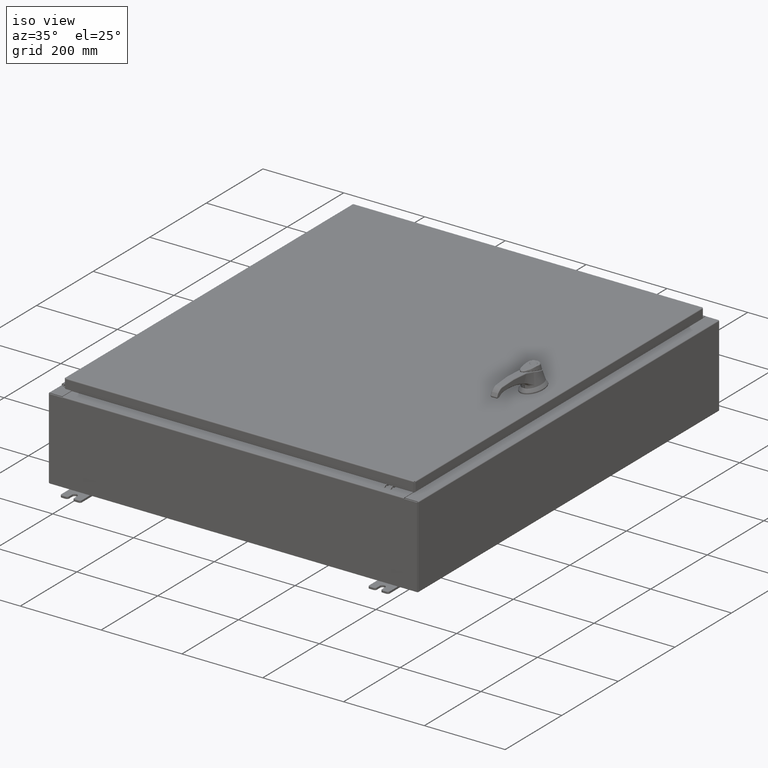
[diagram: clean part render]
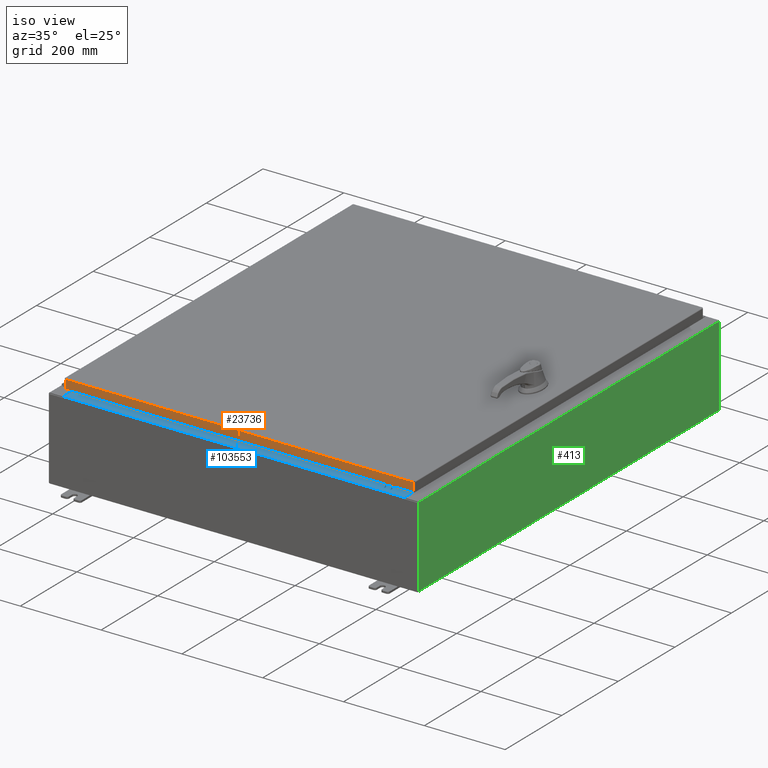
[diagram: same view with three faces highlighted in distinct colors, each labeled with its STEP entity id]
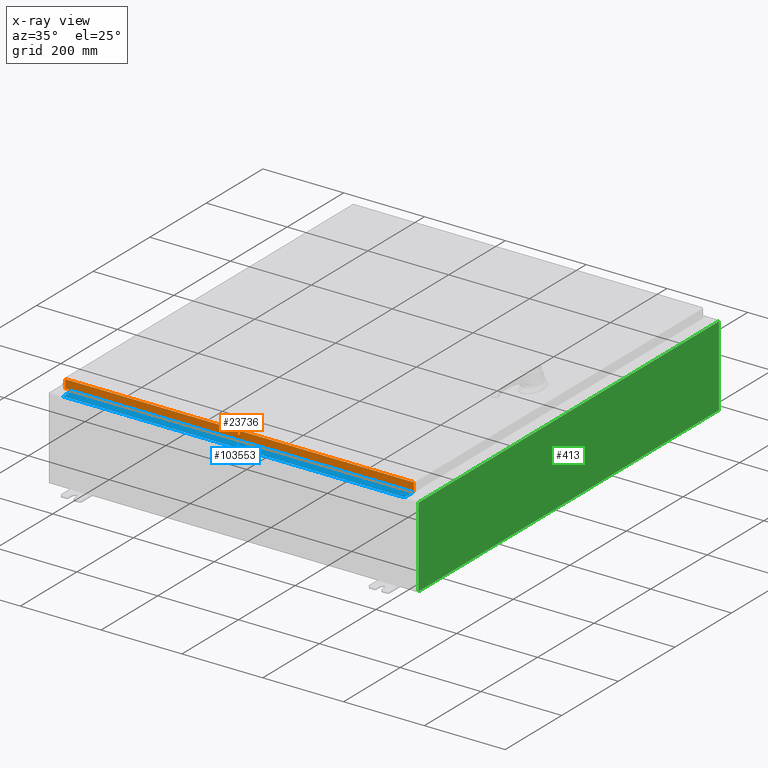
[diagram: x-ray of the same camera — body ghosted, the three highlighted faces saturated]
A machine part, iso view with three faces highlighted in distinct colors.
The next image is the same camera in x-ray (body ghosted, the three faces saturated) — at least one of them is partly hidden behind the body in this view.
Their STEP definitions:

[orange] entity #23736 — the highlighted planar face has unit normal (-0, 1, -0).
#3263 = ORIENTED_EDGE ( 'NONE', *, *, #40494, .F. ) ;
#3434 = EDGE_LOOP ( 'NONE', ( #3263, #30950, #43251, #114079 ) ) ;
#3495 = EDGE_CURVE ( 'NONE', #19994, #8673, #93280, .T. ) ;
#5152 = VECTOR ( 'NONE', #117769, 39.37007874015748100 ) ;
#6419 = EDGE_CURVE ( 'NONE', #125095, #19994, #69797, .T. ) ;
#8673 = VERTEX_POINT ( 'NONE', #43260 ) ;
#9831 = FACE_OUTER_BOUND ( 'NONE', #3434, .T. ) ;
#19994 = VERTEX_POINT ( 'NONE', #24691 ) ;
#23736 = ADVANCED_FACE ( 'NONE', ( #9831 ), #92582, .F. ) ;
#24691 = CARTESIAN_POINT ( 'NONE',  ( 16.98915786437627100, -20.09400000000000800, -0.9376999999999997600 ) ) ;
#27061 = VECTOR ( 'NONE', #78703, 39.37007874015748100 ) ;
#30950 = ORIENTED_EDGE ( 'NONE', *, *, #58894, .T. ) ;
#31647 = CARTESIAN_POINT ( 'NONE',  ( 16.98915786437627100, -20.09400000000000100, -0.07469999999999962800 ) ) ;
#32455 = DIRECTION ( 'NONE',  ( -1.000000000000000000, 8.758115402030108600E-047, 1.279703943630056800E-016 ) ) ;
#40494 = EDGE_CURVE ( 'NONE', #79415, #125095, #71719, .T. ) ;
#42867 = DIRECTION ( 'NONE',  ( -0.0000000000000000000, -5.064839849203732200E-015, -1.000000000000000000 ) ) ;
#43192 = DIRECTION ( 'NONE',  ( -6.481495528880676900E-031, 1.000000000000000000, -5.064839849203732200E-015 ) ) ;
#43251 = ORIENTED_EDGE ( 'NONE', *, *, #3495, .F. ) ;
#43260 = CARTESIAN_POINT ( 'NONE',  ( -16.98915786437626700, -20.09400000000000800, -0.9376999999999954300 ) ) ;
#43462 = VECTOR ( 'NONE', #42867, 39.37007874015748100 ) ;
#48431 = CARTESIAN_POINT ( 'NONE',  ( 17.07799999999999900, -20.09400000000000100, -0.08769999999999550400 ) ) ;
#52309 = CARTESIAN_POINT ( 'NONE',  ( -16.98915786437626700, -20.09400000000000100, -0.08769999999999550400 ) ) ;
#53332 = LINE ( 'NONE', #118176, #27061 ) ;
#58894 = EDGE_CURVE ( 'NONE', #79415, #8673, #53332, .T. ) ;
#66866 = VECTOR ( 'NONE', #32455, 39.37007874015748100 ) ;
#69797 = LINE ( 'NONE', #31647, #43462 ) ;
#71719 = LINE ( 'NONE', #48431, #5152 ) ;
#78703 = DIRECTION ( 'NONE',  ( 0.0000000000000000000, -5.064839849203732200E-015, -1.000000000000000000 ) ) ;
#79415 = VERTEX_POINT ( 'NONE', #52309 ) ;
#81792 = CARTESIAN_POINT ( 'NONE',  ( 17.07799999999999900, -20.09400000000000800, -0.9376999999999997600 ) ) ;
#92365 = CARTESIAN_POINT ( 'NONE',  ( 16.98915786437626700, -20.09400000000000100, -0.08769999999999550400 ) ) ;
#92582 = PLANE ( 'NONE',  #127465 ) ;
#93280 = LINE ( 'NONE', #81792, #66866 ) ;
#102508 = CARTESIAN_POINT ( 'NONE',  ( 1.302391711573283500E-029, -20.09400000000000100, 1.020337055859114000E-013 ) ) ;
#112471 = DIRECTION ( 'NONE',  ( 0.0000000000000000000, 5.064839849203732200E-015, 1.000000000000000000 ) ) ;
#114079 = ORIENTED_EDGE ( 'NONE', *, *, #6419, .F. ) ;
#117769 = DIRECTION ( 'NONE',  ( 1.000000000000000000, 6.481495528880677800E-031, -3.349804276043092000E-045 ) ) ;
#118176 = CARTESIAN_POINT ( 'NONE',  ( -16.98915786437626700, -20.09400000000000100, 1.020337055859114000E-013 ) ) ;
#125095 = VERTEX_POINT ( 'NONE', #92365 ) ;
#127465 = AXIS2_PLACEMENT_3D ( 'NONE', #102508, #43192, #112471 ) ;

[blue] entity #103553 — the highlighted planar face has unit normal (-0, -0, 1).
#648 = CARTESIAN_POINT ( 'NONE',  ( 16.63720000000000700, -1.287299999999999900, 4.000000000000004400 ) ) ;
#3420 = ORIENTED_EDGE ( 'NONE', *, *, #18044, .F. ) ;
#4091 = LINE ( 'NONE', #37210, #53612 ) ;
#5789 = VECTOR ( 'NONE', #109260, 39.37007874015748100 ) ;
#6650 = PLANE ( 'NONE',  #62836 ) ;
#7823 = DIRECTION ( 'NONE',  ( -1.000000000000000000, 3.284023746380717400E-017, -1.171208052571274300E-031 ) ) ;
#8032 = VERTEX_POINT ( 'NONE', #16927 ) ;
#8123 = VECTOR ( 'NONE', #30508, 39.37007874015748100 ) ;
#16579 = DIRECTION ( 'NONE',  ( 0.0000000000000000000, -1.000000000000000000, 3.566381192773190000E-015 ) ) ;
#16927 = CARTESIAN_POINT ( 'NONE',  ( 16.63720000000000400, -1.287299999999999900, 4.000000000000004400 ) ) ;
#18044 = EDGE_CURVE ( 'NONE', #22214, #8032, #32122, .T. ) ;
#22214 = VERTEX_POINT ( 'NONE', #58068 ) ;
#30508 = DIRECTION ( 'NONE',  ( -1.000000000000000000, 0.0000000000000000000, 0.0000000000000000000 ) ) ;
#32122 = LINE ( 'NONE', #99346, #5789 ) ;
#32381 = ORIENTED_EDGE ( 'NONE', *, *, #66994, .T. ) ;
#37210 = CARTESIAN_POINT ( 'NONE',  ( -2.880088825576348200E-018, -0.08769999999999972300, 4.000000000000000900 ) ) ;
#38741 = CARTESIAN_POINT ( 'NONE',  ( -16.63719999999999600, -1.287299999999999200, 4.000000000000004400 ) ) ;
#41379 = VERTEX_POINT ( 'NONE', #38741 ) ;
#46899 = CARTESIAN_POINT ( 'NONE',  ( -16.63719999999999600, -0.07469999999999973900, 4.000000000000000900 ) ) ;
#47881 = EDGE_CURVE ( 'NONE', #41379, #65708, #51724, .T. ) ;
#51575 = ORIENTED_EDGE ( 'NONE', *, *, #47881, .F. ) ;
#51724 = LINE ( 'NONE', #46899, #127687 ) ;
#53612 = VECTOR ( 'NONE', #7823, 39.37007874015748100 ) ;
#58068 = CARTESIAN_POINT ( 'NONE',  ( 16.63720000000000700, -0.08769999999999937600, 4.000000000000000900 ) ) ;
#62836 = AXIS2_PLACEMENT_3D ( 'NONE', #115346, #75895, #16579 ) ;
#65384 = EDGE_LOOP ( 'NONE', ( #51575, #68813, #3420, #32381 ) ) ;
#65708 = VERTEX_POINT ( 'NONE', #111496 ) ;
#66994 = EDGE_CURVE ( 'NONE', #22214, #65708, #4091, .T. ) ;
#68813 = ORIENTED_EDGE ( 'NONE', *, *, #78249, .F. ) ;
#75895 = DIRECTION ( 'NONE',  ( 0.0000000000000000000, 3.566381192773190000E-015, 1.000000000000000000 ) ) ;
#78249 = EDGE_CURVE ( 'NONE', #8032, #41379, #113458, .T. ) ;
#95882 = DIRECTION ( 'NONE',  ( -0.0000000000000000000, 1.000000000000000000, -3.566381192773190000E-015 ) ) ;
#99346 = CARTESIAN_POINT ( 'NONE',  ( 16.63720000000000400, -1.300299999999999800, 4.000000000000004400 ) ) ;
#103553 = ADVANCED_FACE ( 'NONE', ( #109976 ), #6650, .T. ) ;
#109260 = DIRECTION ( 'NONE',  ( -0.0000000000000000000, -1.000000000000000000, 3.566381192773190000E-015 ) ) ;
#109976 = FACE_OUTER_BOUND ( 'NONE', #65384, .T. ) ;
#111496 = CARTESIAN_POINT ( 'NONE',  ( -16.63719999999999600, -0.08769999999999972300, 4.000000000000000900 ) ) ;
#113458 = LINE ( 'NONE', #648, #8123 ) ;
#115346 = CARTESIAN_POINT ( 'NONE',  ( 0.0000000000000000000, 1.425992975200418500E-014, 4.000000000000000900 ) ) ;
#127687 = VECTOR ( 'NONE', #95882, 39.37007874015748100 ) ;

[green] entity #413 — the highlighted planar face has unit normal (-1, 0, 0).
#413 = ADVANCED_FACE ( 'NONE', ( #27924 ), #69084, .F. ) ;
#5013 = DIRECTION ( 'NONE',  ( -0.0000000000000000000, -1.000000000000000000, -0.0000000000000000000 ) ) ;
#7590 = CARTESIAN_POINT ( 'NONE',  ( 18.00000000000002800, 20.92529999999997900, 7.837599999999999200 ) ) ;
#8276 = VERTEX_POINT ( 'NONE', #69280 ) ;
#9633 = EDGE_CURVE ( 'NONE', #111338, #32186, #118984, .T. ) ;
#23862 = ORIENTED_EDGE ( 'NONE', *, *, #9633, .T. ) ;
#27924 = FACE_OUTER_BOUND ( 'NONE', #120368, .T. ) ;
#28124 = CARTESIAN_POINT ( 'NONE',  ( 18.00000000000000400, 20.92529999999998900, -6.478858477053724100E-014 ) ) ;
#32186 = VERTEX_POINT ( 'NONE', #43701 ) ;
#43701 = CARTESIAN_POINT ( 'NONE',  ( 18.00000000000003200, -20.92529999999999600, 7.837599999999999200 ) ) ;
#47184 = AXIS2_PLACEMENT_3D ( 'NONE', #75061, #125487, #126742 ) ;
#47404 = DIRECTION ( 'NONE',  ( -0.0000000000000000000, -1.000000000000000000, -0.0000000000000000000 ) ) ;
#58836 = CARTESIAN_POINT ( 'NONE',  ( 18.00000000000002800, 20.92529999999997500, 7.837599999999999200 ) ) ;
#66142 = VECTOR ( 'NONE', #47404, 39.37007874015748100 ) ;
#69084 = PLANE ( 'NONE',  #47184 ) ;
#69159 = CARTESIAN_POINT ( 'NONE',  ( 18.00000000000000400, -20.92529999999999600, -6.478858477053724100E-014 ) ) ;
#69280 = CARTESIAN_POINT ( 'NONE',  ( 18.00000000000000400, -20.92529999999999600, 0.01299999999999983600 ) ) ;
#74263 = CARTESIAN_POINT ( 'NONE',  ( 18.00000000000000400, -20.92529999999999600, 0.01299999999999984700 ) ) ;
#75061 = CARTESIAN_POINT ( 'NONE',  ( 18.00000000000000400, 0.0000000000000000000, -6.478858477053724100E-014 ) ) ;
#77030 = ORIENTED_EDGE ( 'NONE', *, *, #124571, .F. ) ;
#78417 = VECTOR ( 'NONE', #87417, 39.37007874015748100 ) ;
#87417 = DIRECTION ( 'NONE',  ( 3.584876173029202900E-015, 0.0000000000000000000, 1.000000000000000000 ) ) ;
#92074 = EDGE_CURVE ( 'NONE', #32186, #8276, #98465, .T. ) ;
#92233 = VECTOR ( 'NONE', #98215, 39.37007874015748100 ) ;
#98215 = DIRECTION ( 'NONE',  ( -3.584876173029202900E-015, 0.0000000000000000000, -1.000000000000000000 ) ) ;
#98465 = LINE ( 'NONE', #69159, #92233 ) ;
#101667 = LINE ( 'NONE', #28124, #78417 ) ;
#107393 = EDGE_CURVE ( 'NONE', #118345, #111338, #101667, .T. ) ;
#109989 = ORIENTED_EDGE ( 'NONE', *, *, #92074, .T. ) ;
#111338 = VERTEX_POINT ( 'NONE', #58836 ) ;
#112275 = CARTESIAN_POINT ( 'NONE',  ( 18.00000000000000400, 20.92529999999998600, 0.01299999999999984700 ) ) ;
#118341 = LINE ( 'NONE', #74263, #121466 ) ;
#118345 = VERTEX_POINT ( 'NONE', #112275 ) ;
#118984 = LINE ( 'NONE', #7590, #66142 ) ;
#120368 = EDGE_LOOP ( 'NONE', ( #23862, #109989, #77030, #124781 ) ) ;
#121466 = VECTOR ( 'NONE', #5013, 39.37007874015748100 ) ;
#124571 = EDGE_CURVE ( 'NONE', #118345, #8276, #118341, .T. ) ;
#124781 = ORIENTED_EDGE ( 'NONE', *, *, #107393, .T. ) ;
#125487 = DIRECTION ( 'NONE',  ( -1.000000000000000000, 0.0000000000000000000, 3.584876173029202900E-015 ) ) ;
#126742 = DIRECTION ( 'NONE',  ( 3.584876173029202900E-015, 0.0000000000000000000, 1.000000000000000000 ) ) ;